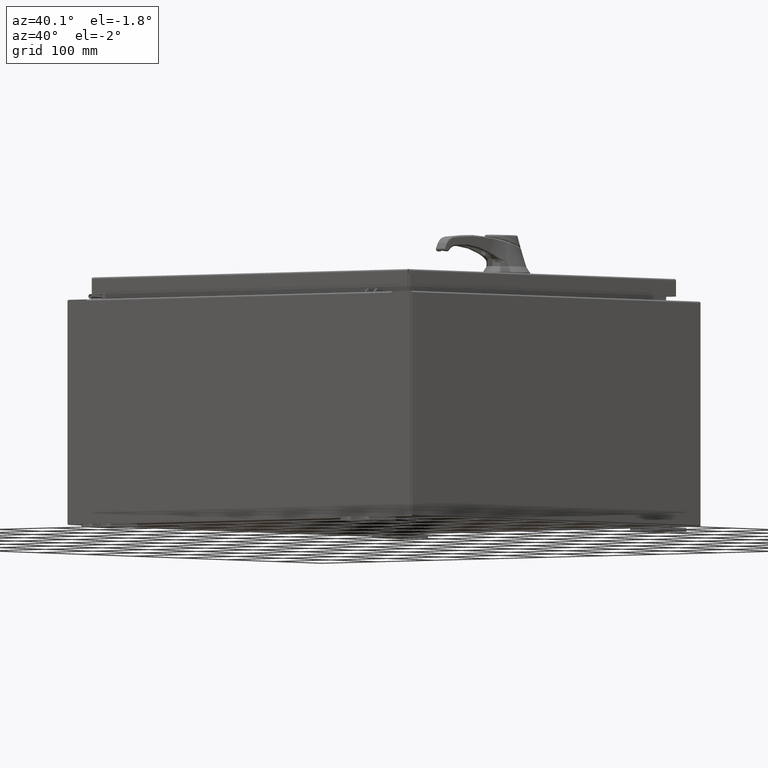
[diagram: clean part render]
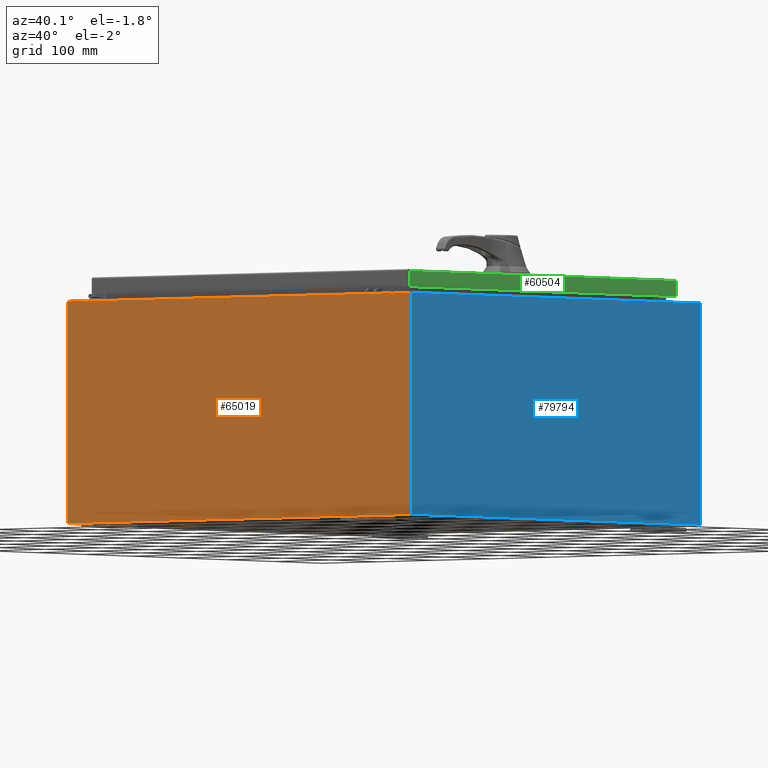
[diagram: same view with three faces highlighted in distinct colors, each labeled with its STEP entity id]
A machine part, auxiliary view with three faces highlighted in distinct colors.
Their STEP definitions:

[orange] entity #65019 — the highlighted planar face has unit normal (-0, 1, -0).
#195 = AXIS2_PLACEMENT_3D ( 'NONE', #8605, #95304, #43477 ) ;
#532 = VERTEX_POINT ( 'NONE', #86825 ) ;
#2957 = DIRECTION ( 'NONE',  ( 0.0000000000000000000, 0.0000000000000000000, -1.000000000000000000 ) ) ;
#3107 = DIRECTION ( 'NONE',  ( 0.0000000000000000000, 0.0000000000000000000, 1.000000000000000000 ) ) ;
#5685 = DIRECTION ( 'NONE',  ( 1.000000000000000000, 0.0000000000000000000, 4.581600452255731000E-017 ) ) ;
#8075 = ORIENTED_EDGE ( 'NONE', *, *, #84396, .T. ) ;
#8134 = CARTESIAN_POINT ( 'NONE',  ( -11.92530000000000000, 0.0000000000000000000, 5.925300000000000000 ) ) ;
#8605 = CARTESIAN_POINT ( 'NONE',  ( 0.0000000000000000000, 0.0000000000000000000, 0.0000000000000000000 ) ) ;
#9701 = EDGE_CURVE ( 'NONE', #79214, #14125, #110173, .T. ) ;
#9952 = VERTEX_POINT ( 'NONE', #92356 ) ;
#11122 = VERTEX_POINT ( 'NONE', #73366 ) ;
#12871 = ORIENTED_EDGE ( 'NONE', *, *, #73223, .F. ) ;
#13964 = LINE ( 'NONE', #55050, #19357 ) ;
#14046 = CARTESIAN_POINT ( 'NONE',  ( -11.92530000000000000, 0.0000000000000000000, 5.925300000000000000 ) ) ;
#14125 = VERTEX_POINT ( 'NONE', #85069 ) ;
#14128 = ORIENTED_EDGE ( 'NONE', *, *, #74239, .F. ) ;
#15631 = VECTOR ( 'NONE', #2957, 39.37007874015748100 ) ;
#16324 = CARTESIAN_POINT ( 'NONE',  ( -10.63720000000000400, -0.0000000000000000000, 0.0000000000000000000 ) ) ;
#16764 = LINE ( 'NONE', #16324, #83156 ) ;
#19357 = VECTOR ( 'NONE', #3107, 39.37007874015748100 ) ;
#19695 = LINE ( 'NONE', #44682, #109061 ) ;
#20497 = CARTESIAN_POINT ( 'NONE',  ( 11.92530000000000000, 0.0000000000000000000, 5.925300000000001800 ) ) ;
#21067 = EDGE_CURVE ( 'NONE', #71786, #33391, #38664, .T. ) ;
#23221 = CARTESIAN_POINT ( 'NONE',  ( -10.63720000000000400, -1.707404996040164500E-016, 5.912300000000001000 ) ) ;
#23561 = VECTOR ( 'NONE', #29206, 39.37007874015748100 ) ;
#29206 = DIRECTION ( 'NONE',  ( 0.0000000000000000000, 0.0000000000000000000, -1.000000000000000000 ) ) ;
#30681 = CARTESIAN_POINT ( 'NONE',  ( 10.67455000000000200, 0.0000000000000000000, 5.925300000000001800 ) ) ;
#31162 = CARTESIAN_POINT ( 'NONE',  ( 11.92530000000000000, 0.0000000000000000000, 5.925300000000001800 ) ) ;
#33391 = VERTEX_POINT ( 'NONE', #65465 ) ;
#33876 = CARTESIAN_POINT ( 'NONE',  ( -11.92530000000000000, 0.0000000000000000000, -5.925299999999999100 ) ) ;
#36639 = LINE ( 'NONE', #14046, #102942 ) ;
#38664 = LINE ( 'NONE', #63611, #15631 ) ;
#42592 = DIRECTION ( 'NONE',  ( -1.000000000000000000, -0.0000000000000000000, -0.0000000000000000000 ) ) ;
#42799 = CARTESIAN_POINT ( 'NONE',  ( 10.65587500000000200, 0.0000000000000000000, 5.874950000000001000 ) ) ;
#43280 = VECTOR ( 'NONE', #5685, 39.37007874015748100 ) ;
#43283 = CARTESIAN_POINT ( 'NONE',  ( -10.63720000000000400, -1.707404996040164500E-016, 5.912300000000001000 ) ) ;
#43477 = DIRECTION ( 'NONE',  ( 0.0000000000000000000, -0.0000000000000000000, -1.000000000000000000 ) ) ;
#44682 = CARTESIAN_POINT ( 'NONE',  ( 10.63720000000000400, 0.0000000000000000000, 0.0000000000000000000 ) ) ;
#46376 = CARTESIAN_POINT ( 'NONE',  ( -10.65587500000000200, 0.0000000000000000000, 5.874950000000001000 ) ) ;
#46865 = ORIENTED_EDGE ( 'NONE', *, *, #9701, .T. ) ;
#48880 = CARTESIAN_POINT ( 'NONE',  ( -11.92530000000000000, 0.0000000000000000000, 5.925300000000000000 ) ) ;
#49362 = ORIENTED_EDGE ( 'NONE', *, *, #110816, .T. ) ;
#50107 = VERTEX_POINT ( 'NONE', #66542 ) ;
#50956 = CARTESIAN_POINT ( 'NONE',  ( -10.67455000000000200, 0.0000000000000000000, 5.874950000000001000 ) ) ;
#51059 = AXIS2_PLACEMENT_3D ( 'NONE', #42799, #103316, #51498 ) ;
#51069 = ORIENTED_EDGE ( 'NONE', *, *, #91275, .T. ) ;
#51490 = EDGE_LOOP ( 'NONE', ( #14128, #57454, #12871, #88880, #86988, #83006, #75731, #49362, #46865, #8075, #51069, #59216 ) ) ;
#51498 = DIRECTION ( 'NONE',  ( 0.0000000000000000000, 0.0000000000000000000, -1.000000000000000000 ) ) ;
#54535 = PLANE ( 'NONE',  #195 ) ;
#55050 = CARTESIAN_POINT ( 'NONE',  ( -10.67455000000000200, -0.0000000000000000000, 0.0000000000000000000 ) ) ;
#55085 = DIRECTION ( 'NONE',  ( 0.0000000000000000000, 0.0000000000000000000, -1.000000000000000000 ) ) ;
#57454 = ORIENTED_EDGE ( 'NONE', *, *, #75727, .F. ) ;
#58932 = VERTEX_POINT ( 'NONE', #92071 ) ;
#59216 = ORIENTED_EDGE ( 'NONE', *, *, #100427, .T. ) ;
#59862 = DIRECTION ( 'NONE',  ( 0.0000000000000000000, 0.0000000000000000000, -1.000000000000000000 ) ) ;
#60418 = EDGE_CURVE ( 'NONE', #96543, #11122, #67080, .T. ) ;
#63611 = CARTESIAN_POINT ( 'NONE',  ( 10.67455000000000200, 0.0000000000000000000, 0.0000000000000000000 ) ) ;
#65019 = ADVANCED_FACE ( 'NONE', ( #86835 ), #54535, .F. ) ;
#65465 = CARTESIAN_POINT ( 'NONE',  ( 10.67455000000000200, 0.0000000000000000000, 5.874950000000001000 ) ) ;
#66542 = CARTESIAN_POINT ( 'NONE',  ( 10.63720000000000400, 0.0000000000000000000, 5.874950000000001000 ) ) ;
#67080 = LINE ( 'NONE', #23221, #87371 ) ;
#68757 = DIRECTION ( 'NONE',  ( 1.000000000000000000, 0.0000000000000000000, 4.581600452255731000E-017 ) ) ;
#70523 = VECTOR ( 'NONE', #68757, 39.37007874015748100 ) ;
#71237 = VECTOR ( 'NONE', #42592, 39.37007874015748100 ) ;
#71531 = EDGE_CURVE ( 'NONE', #50107, #11122, #19695, .T. ) ;
#71786 = VERTEX_POINT ( 'NONE', #30681 ) ;
#73223 = EDGE_CURVE ( 'NONE', #96543, #532, #16764, .T. ) ;
#73366 = CARTESIAN_POINT ( 'NONE',  ( 10.63720000000000400, 0.0000000000000000000, 5.912300000000001000 ) ) ;
#73986 = LINE ( 'NONE', #33876, #71237 ) ;
#74239 = EDGE_CURVE ( 'NONE', #95766, #9952, #13964, .T. ) ;
#74603 = DIRECTION ( 'NONE',  ( -0.0000000000000000000, -0.0000000000000000000, 1.000000000000000000 ) ) ;
#75727 = EDGE_CURVE ( 'NONE', #532, #95766, #81525, .T. ) ;
#75731 = ORIENTED_EDGE ( 'NONE', *, *, #21067, .F. ) ;
#76270 = VERTEX_POINT ( 'NONE', #89403 ) ;
#79214 = VERTEX_POINT ( 'NONE', #31162 ) ;
#79463 = EDGE_CURVE ( 'NONE', #33391, #50107, #94733, .T. ) ;
#79539 = DIRECTION ( 'NONE',  ( 0.0000000000000000000, 0.0000000000000000000, 1.000000000000000000 ) ) ;
#81525 = CIRCLE ( 'NONE', #99467, 0.01867499999999949400 ) ;
#83006 = ORIENTED_EDGE ( 'NONE', *, *, #79463, .F. ) ;
#83156 = VECTOR ( 'NONE', #59862, 39.37007874015748100 ) ;
#83802 = DIRECTION ( 'NONE',  ( 1.000000000000000000, 0.0000000000000000000, 0.0000000000000000000 ) ) ;
#84396 = EDGE_CURVE ( 'NONE', #14125, #58932, #73986, .T. ) ;
#85069 = CARTESIAN_POINT ( 'NONE',  ( 11.92530000000000000, 0.0000000000000000000, -5.925299999999999100 ) ) ;
#86825 = CARTESIAN_POINT ( 'NONE',  ( -10.63720000000000400, -0.0000000000000000000, 5.874950000000001000 ) ) ;
#86835 = FACE_OUTER_BOUND ( 'NONE', #51490, .T. ) ;
#86988 = ORIENTED_EDGE ( 'NONE', *, *, #71531, .F. ) ;
#87371 = VECTOR ( 'NONE', #83802, 39.37007874015748100 ) ;
#88880 = ORIENTED_EDGE ( 'NONE', *, *, #60418, .T. ) ;
#89403 = CARTESIAN_POINT ( 'NONE',  ( -11.92530000000000000, 0.0000000000000000000, 5.925300000000000000 ) ) ;
#91275 = EDGE_CURVE ( 'NONE', #58932, #76270, #36639, .T. ) ;
#92071 = CARTESIAN_POINT ( 'NONE',  ( -11.92530000000000000, 0.0000000000000000000, -5.925299999999999100 ) ) ;
#92356 = CARTESIAN_POINT ( 'NONE',  ( -10.67455000000000200, 0.0000000000000000000, 5.925300000000000000 ) ) ;
#93555 = LINE ( 'NONE', #8134, #70523 ) ;
#94733 = CIRCLE ( 'NONE', #51059, 0.01867499999999949400 ) ;
#95304 = DIRECTION ( 'NONE',  ( 0.0000000000000000000, -1.000000000000000000, 0.0000000000000000000 ) ) ;
#95766 = VERTEX_POINT ( 'NONE', #50956 ) ;
#96543 = VERTEX_POINT ( 'NONE', #43283 ) ;
#99467 = AXIS2_PLACEMENT_3D ( 'NONE', #46376, #106920, #55085 ) ;
#100427 = EDGE_CURVE ( 'NONE', #76270, #9952, #93555, .T. ) ;
#102942 = VECTOR ( 'NONE', #74603, 39.37007874015748100 ) ;
#103316 = DIRECTION ( 'NONE',  ( -0.0000000000000000000, 1.000000000000000000, -0.0000000000000000000 ) ) ;
#106920 = DIRECTION ( 'NONE',  ( -0.0000000000000000000, 1.000000000000000000, -0.0000000000000000000 ) ) ;
#109061 = VECTOR ( 'NONE', #79539, 39.37007874015748100 ) ;
#109629 = LINE ( 'NONE', #48880, #43280 ) ;
#110173 = LINE ( 'NONE', #20497, #23561 ) ;
#110816 = EDGE_CURVE ( 'NONE', #71786, #79214, #109629, .T. ) ;

[blue] entity #79794 — the highlighted planar face has unit normal (-1, 0, 0).
#535 = CARTESIAN_POINT ( 'NONE',  ( 11.99999999999999800, -11.92530000000000400, 0.01299999999999984700 ) ) ;
#3044 = ORIENTED_EDGE ( 'NONE', *, *, #6833, .T. ) ;
#4465 = ORIENTED_EDGE ( 'NONE', *, *, #29604, .T. ) ;
#5752 = LINE ( 'NONE', #103952, #51855 ) ;
#6833 = EDGE_CURVE ( 'NONE', #55730, #40777, #95574, .T. ) ;
#10655 = CARTESIAN_POINT ( 'NONE',  ( 12.00000000000004100, -11.92530000000000400, 11.83760000000000000 ) ) ;
#18385 = EDGE_CURVE ( 'NONE', #24376, #65640, #18637, .T. ) ;
#18637 = LINE ( 'NONE', #28389, #105230 ) ;
#19135 = CARTESIAN_POINT ( 'NONE',  ( 12.00000000000004100, 11.92529999999999800, 11.83760000000000000 ) ) ;
#19896 = AXIS2_PLACEMENT_3D ( 'NONE', #46121, #106678, #54846 ) ;
#24376 = VERTEX_POINT ( 'NONE', #29135 ) ;
#28389 = CARTESIAN_POINT ( 'NONE',  ( 11.99999999999999800, -11.92530000000000400, 0.01299999999999984700 ) ) ;
#29135 = CARTESIAN_POINT ( 'NONE',  ( 11.99999999999999800, 11.92529999999999600, 0.01299999999999984700 ) ) ;
#29287 = VECTOR ( 'NONE', #62292, 39.37007874015748100 ) ;
#29604 = EDGE_CURVE ( 'NONE', #40777, #65640, #5752, .T. ) ;
#38336 = EDGE_LOOP ( 'NONE', ( #3044, #4465, #38924, #57650 ) ) ;
#38924 = ORIENTED_EDGE ( 'NONE', *, *, #18385, .F. ) ;
#40605 = VECTOR ( 'NONE', #64210, 39.37007874015748100 ) ;
#40777 = VERTEX_POINT ( 'NONE', #10655 ) ;
#46121 = CARTESIAN_POINT ( 'NONE',  ( 11.99999999999999800, 0.0000000000000000000, -4.204500978058384000E-014 ) ) ;
#51397 = LINE ( 'NONE', #107330, #40605 ) ;
#51855 = VECTOR ( 'NONE', #77925, 39.37007874015748100 ) ;
#54846 = DIRECTION ( 'NONE',  ( 3.482016343714355100E-015, 0.0000000000000000000, 1.000000000000000000 ) ) ;
#55730 = VERTEX_POINT ( 'NONE', #65841 ) ;
#57650 = ORIENTED_EDGE ( 'NONE', *, *, #78358, .T. ) ;
#62292 = DIRECTION ( 'NONE',  ( -0.0000000000000000000, -1.000000000000000000, -0.0000000000000000000 ) ) ;
#64210 = DIRECTION ( 'NONE',  ( 3.482016343714355500E-015, -1.832640180902292400E-016, 1.000000000000000000 ) ) ;
#65640 = VERTEX_POINT ( 'NONE', #535 ) ;
#65841 = CARTESIAN_POINT ( 'NONE',  ( 12.00000000000004100, 11.92529999999999600, 11.83760000000000000 ) ) ;
#71533 = DIRECTION ( 'NONE',  ( -0.0000000000000000000, -1.000000000000000000, -0.0000000000000000000 ) ) ;
#77925 = DIRECTION ( 'NONE',  ( -3.482016343714355500E-015, 0.0000000000000000000, -1.000000000000000000 ) ) ;
#78358 = EDGE_CURVE ( 'NONE', #24376, #55730, #51397, .T. ) ;
#79794 = ADVANCED_FACE ( 'NONE', ( #89333 ), #97963, .F. ) ;
#89333 = FACE_OUTER_BOUND ( 'NONE', #38336, .T. ) ;
#95574 = LINE ( 'NONE', #19135, #29287 ) ;
#97963 = PLANE ( 'NONE',  #19896 ) ;
#103952 = CARTESIAN_POINT ( 'NONE',  ( 11.99999999999999800, -11.92530000000000400, -4.204500978058384000E-014 ) ) ;
#105230 = VECTOR ( 'NONE', #71533, 39.37007874015748100 ) ;
#106678 = DIRECTION ( 'NONE',  ( -1.000000000000000000, 0.0000000000000000000, 3.482016343714355100E-015 ) ) ;
#107330 = CARTESIAN_POINT ( 'NONE',  ( 11.99999999999999800, 11.92529999999999800, -3.985953138565242700E-014 ) ) ;

[green] entity #60504 — the highlighted planar face has unit normal (1, 0, 0).
#919 = CARTESIAN_POINT ( 'NONE',  ( 11.07799999999999600, 11.00515786437626900, -0.08770000000000008300 ) ) ;
#7355 = CARTESIAN_POINT ( 'NONE',  ( 11.07799999999999800, 11.00515786437627200, -0.9376999999999997600 ) ) ;
#10326 = VERTEX_POINT ( 'NONE', #7355 ) ;
#11802 = DIRECTION ( 'NONE',  ( 0.0000000000000000000, -1.000000000000000000, 0.0000000000000000000 ) ) ;
#15258 = PLANE ( 'NONE',  #39334 ) ;
#16524 = ORIENTED_EDGE ( 'NONE', *, *, #39752, .T. ) ;
#16540 = LINE ( 'NONE', #84819, #57174 ) ;
#22354 = VECTOR ( 'NONE', #69540, 39.37007874015748100 ) ;
#25752 = VERTEX_POINT ( 'NONE', #58027 ) ;
#26403 = CARTESIAN_POINT ( 'NONE',  ( 11.07799999999999600, 11.00515786437626700, 1.051635682097360300E-013 ) ) ;
#29239 = CARTESIAN_POINT ( 'NONE',  ( 11.07799999999999800, -11.09400000000000100, -0.9376999999999997600 ) ) ;
#32658 = DIRECTION ( 'NONE',  ( 2.532419924601866100E-015, 0.0000000000000000000, -1.000000000000000000 ) ) ;
#32947 = DIRECTION ( 'NONE',  ( 0.0000000000000000000, -1.000000000000000000, 0.0000000000000000000 ) ) ;
#39334 = AXIS2_PLACEMENT_3D ( 'NONE', #75824, #84522, #32658 ) ;
#39752 = EDGE_CURVE ( 'NONE', #10326, #56175, #45325, .T. ) ;
#40322 = LINE ( 'NONE', #98932, #103851 ) ;
#45325 = LINE ( 'NONE', #26403, #22354 ) ;
#45434 = ORIENTED_EDGE ( 'NONE', *, *, #104678, .F. ) ;
#46837 = EDGE_CURVE ( 'NONE', #56175, #25752, #16540, .T. ) ;
#51476 = EDGE_LOOP ( 'NONE', ( #83511, #45434, #16524, #67814 ) ) ;
#51486 = CARTESIAN_POINT ( 'NONE',  ( 11.07799999999999800, -11.00515786437626200, -0.9376999999999997600 ) ) ;
#55821 = DIRECTION ( 'NONE',  ( -2.532419924601866100E-015, -6.982962677686267500E-015, 1.000000000000000000 ) ) ;
#56175 = VERTEX_POINT ( 'NONE', #919 ) ;
#57174 = VECTOR ( 'NONE', #32947, 39.37007874015748100 ) ;
#58027 = CARTESIAN_POINT ( 'NONE',  ( 11.07799999999999600, -11.00515786437626900, -0.08770000000000008300 ) ) ;
#60504 = ADVANCED_FACE ( 'NONE', ( #61642 ), #15258, .T. ) ;
#61642 = FACE_OUTER_BOUND ( 'NONE', #51476, .T. ) ;
#67814 = ORIENTED_EDGE ( 'NONE', *, *, #46837, .T. ) ;
#68059 = VERTEX_POINT ( 'NONE', #51486 ) ;
#69540 = DIRECTION ( 'NONE',  ( -2.532419924601866100E-015, -6.982962677686267500E-015, 1.000000000000000000 ) ) ;
#75824 = CARTESIAN_POINT ( 'NONE',  ( 11.07799999999999600, 0.0000000000000000000, 2.831496158075104400E-014 ) ) ;
#80881 = LINE ( 'NONE', #29239, #101145 ) ;
#83511 = ORIENTED_EDGE ( 'NONE', *, *, #106050, .F. ) ;
#84522 = DIRECTION ( 'NONE',  ( 1.000000000000000000, 0.0000000000000000000, 2.532419924601866100E-015 ) ) ;
#84819 = CARTESIAN_POINT ( 'NONE',  ( 11.07799999999999600, 0.0000000000000000000, -0.08770000000000008300 ) ) ;
#98932 = CARTESIAN_POINT ( 'NONE',  ( 11.07799999999999600, -11.00515786437626900, -0.07469999999999980800 ) ) ;
#101145 = VECTOR ( 'NONE', #11802, 39.37007874015748100 ) ;
#103851 = VECTOR ( 'NONE', #55821, 39.37007874015748100 ) ;
#104678 = EDGE_CURVE ( 'NONE', #10326, #68059, #80881, .T. ) ;
#106050 = EDGE_CURVE ( 'NONE', #68059, #25752, #40322, .T. ) ;